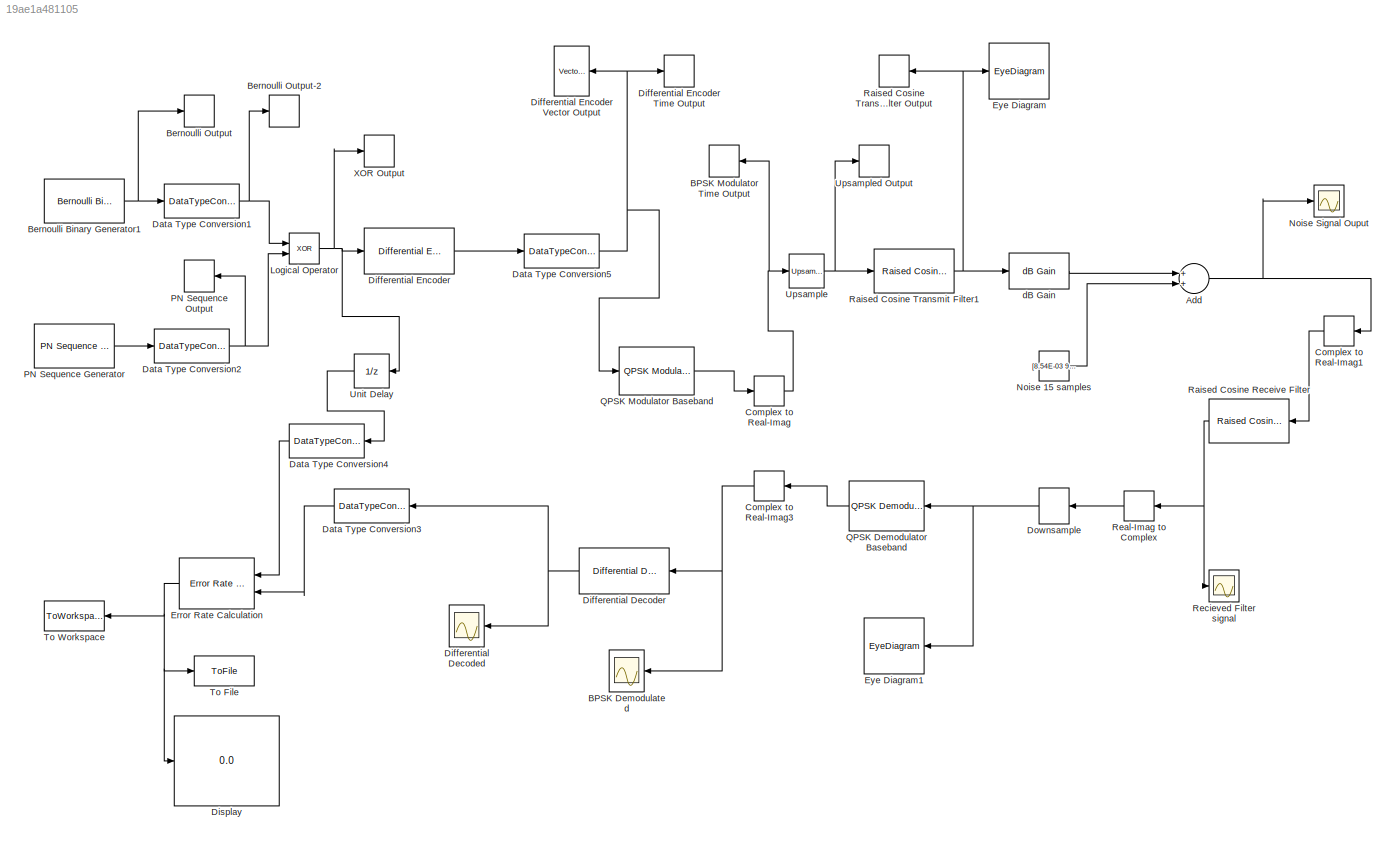
MODEL slx_19ae1a481105
KIND model
CONFIG AbsTol = auto
CONFIG FixedStep = auto
CONFIG MaxStep = auto
CONFIG MinStep = auto
CONFIG RelTol = 1e-3
CONFIG SampleTimeConstraint = Unconstrained
CONFIG Solver = ode45
CONFIG SolverMode = Auto
CONFIG SolverName = ode45
CONFIG StartTime = 0.0
CONFIG StopTime = 10.0
BLOCK [Sum] Add
  InputSameDT = off
  OutDataTypeStr = Inherit: Inherit via internal rule
  Ports = [2, 1]
  SaturateOnIntegerOverflow = off
BLOCK [Scope] BPSK Demodulated
  Floating = off
  NumInputPorts = 1
  Ports = [1]
  SaveName = ScopeData10
BLOCK [TimeScope] BPSK Modulator Time Output
  DefaultConfigurationName = spbscopes.TimeScopeBlockCfg
  NumInputPorts = 1
  Ports = [1]
  ScopeSpecificationString = spbscopes.TimeScopeBlockCfg('CurrentConfiguration', extmgr.ConfigurationSet(extmgr.Configuration('Core','General UI',true),extmgr.Configuration('Core','Source UI',true),extmgr.Configuration('Sources','WiredSimulink',true,'DataLoggingVariableName','ScopeData2'),extmgr.Configuration('Visuals','Time Domain',true,'DisplayPropertyDefaults',struct('MinYLimReal','0.0539959175876','MaxYLimReal','0.0539959...<+1935ch>
  UserDataPersistent = on
BLOCK [Reference] Bernoulli Binary Generator1  REF=commrandsrc2/Bernoulli Binary
Generator
  P = 0.5
  Ports = [0, 1]
  SourceBlock = commrandsrc2/Bernoulli Binary\nGenerator
  SourceType = Bernoulli Binary Generator
  Ts = 1/38400
  frameBased = off
  orient = on
  outDataType = double
  sampPerFrame = 1
  seed = 61
BLOCK [TimeScope] Bernoulli Output
  DefaultConfigurationName = spbscopes.TimeScopeBlockCfg
  NumInputPorts = 1
  Ports = [1]
  ScopeSpecificationString = spbscopes.TimeScopeBlockCfg('CurrentConfiguration', extmgr.ConfigurationSet(extmgr.Configuration('Core','General UI',true),extmgr.Configuration('Core','Source UI',true),extmgr.Configuration('Sources','WiredSimulink',true,'DataLoggingVariableName','ScopeData3'),extmgr.Configuration('Visuals','Time Domain',true,'DisplayPropertyDefaults',struct('MinYLimReal','-0.125','MaxYLimReal','1.125','YLabelReal...<+1812ch>
  UserDataPersistent = on
BLOCK [TimeScope] Bernoulli Output-2
  DefaultConfigurationName = spbscopes.TimeScopeBlockCfg
  NumInputPorts = 1
  Ports = [1]
  ScopeSpecificationString = spbscopes.TimeScopeBlockCfg('CurrentConfiguration', extmgr.ConfigurationSet(extmgr.Configuration('Core','General UI',true),extmgr.Configuration('Core','Source UI',true),extmgr.Configuration('Sources','WiredSimulink',true,'DataLoggingVariableName','ScopeData4'),extmgr.Configuration('Visuals','Time Domain',true,'DisplayPropertyDefaults',struct('MinYLimReal','0.8125','MaxYLimReal','1.125','YLabelReal...<+1818ch>
  UserDataPersistent = on
BLOCK [ComplexToRealImag] Complex to Real-Imag
  Output = Real
  Ports = [1, 1]
BLOCK [ComplexToRealImag] Complex to Real-Imag1
  Output = Real
  Ports = [1, 1]
BLOCK [ComplexToRealImag] Complex to Real-Imag3
  Output = Real
  Ports = [1, 1]
BLOCK [DataTypeConversion] Data Type Conversion1
  OutDataTypeStr = uint8
  RndMeth = Floor
  SaturateOnIntegerOverflow = off
BLOCK [DataTypeConversion] Data Type Conversion2
  OutDataTypeStr = double
  RndMeth = Floor
  SaturateOnIntegerOverflow = off
BLOCK [DataTypeConversion] Data Type Conversion3
  OutDataTypeStr = int8
  RndMeth = Floor
  SaturateOnIntegerOverflow = off
BLOCK [DataTypeConversion] Data Type Conversion4
  OutDataTypeStr = int8
  RndMeth = Floor
  SaturateOnIntegerOverflow = off
BLOCK [DataTypeConversion] Data Type Conversion5
  OutDataTypeStr = int8
  RndMeth = Floor
  SaturateOnIntegerOverflow = off
BLOCK [Scope] Differential Decoded
  Floating = off
  NumInputPorts = 1
  Ports = [1]
  SaveName = ScopeData11
BLOCK [Reference] Differential Decoder  REF=commsrccod2/Differential
Decoder
  InitCond = 0
  Ports = [1, 1]
  SourceBlock = commsrccod2/Differential\nDecoder
  SourceType = Differential Decoder
BLOCK [Reference] Differential Encoder  REF=commsrccod2/Differential
Encoder
  InitCond = 0
  Ports = [1, 1]
  SourceBlock = commsrccod2/Differential\nEncoder
  SourceType = Differential Encoder
BLOCK [TimeScope] Differential Encoder Time Output
  DefaultConfigurationName = spbscopes.TimeScopeBlockCfg
  NumInputPorts = 1
  Ports = [1]
  ScopeSpecificationString = spbscopes.TimeScopeBlockCfg('CurrentConfiguration', extmgr.ConfigurationSet(extmgr.Configuration('Core','General UI',true),extmgr.Configuration('Core','Source UI',true),extmgr.Configuration('Sources','WiredSimulink',true,'DataLoggingVariableName','ScopeData5'),extmgr.Configuration('Visuals','Time Domain',true,'DisplayPropertyDefaults',struct('MinYLimReal','0.830526','MaxYLimReal','0.834614','YLabe...<+1811ch>
  UserDataPersistent = on
BLOCK [Reference] Differential Encoder Vector Output  REF=dspsnks4/Vector
Scope
  AxisGrid = on
  AxisLegend = off
  AxisProperties = off
  AxisZoom = off
  DisplayProperties = off
  Domain = Time
  FigPos = get(0,'defaultfigureposition')
  FrameNumber = on
  HorizSpan = 10
  InheritXIncr = on
  LineProperties = off
  Memory = off
  OpenScopeAtSimStart = on
  OpenScopeImmediately = off
  Ports = [1]
  ScopeProperties = on
  ShowPortLabels = off
  SourceBlock = dspsnks4/Vector\nScope
  SourceType = Vector Scope
  XAxisParamsVer = 6.9
  XIncr = 1
  XLabel = Time
  XLimit = Auto
  XMax = 1
  XMin = 0
  XRange = [0...Fs/2]
  XStart = 0
  XUnits = Hertz
  YLabel = Amplitude
  YMax = 10
  YMin = -10
  YUnits = dB
BLOCK [Display] Display
  Decimation = 1
  Ports = [1]
BLOCK [DownSample] Downsample
  InputProcessing = Elements as channels (sample based)
  N = 15
  RateOptions = Allow multirate processing
BLOCK [Reference] Error Rate Calculation  REF=commsink2/Error Rate
Calculation
  N = 1
  PMode = Port
  Ports = [2, 1]
  RsMode2 = off
  SourceBlock = commsink2/Error Rate\nCalculation
  SourceType = Error Rate Calculation
  WsName = ErrorVec
  cp_mode = Entire frame
  maxBits = 1e6
  numErr = 100
  st_delay = 0
  stop = off
  subframe = []
BLOCK [EyeDiagram] Eye Diagram
  Ports = [1]
  ScopeSpecificationString = comm.scopes.EyeDiagramBlockCfg('CurrentConfiguration', extmgr.ConfigurationSet(extmgr.Configuration('Core','General UI',true),extmgr.Configuration('Core','Source UI',true),extmgr.Configuration('Sources','WiredSimulink',true),extmgr.Configuration('Sources','Simulink',false),extmgr.Configuration('Sources','File',false),extmgr.Configuration('Sources','Workspace',false),extmgr.Configuration('Sources',...<+1094ch>
BLOCK [EyeDiagram] Eye Diagram1
  Ports = [1]
  ScopeSpecificationString = comm.scopes.EyeDiagramBlockCfg('CurrentConfiguration', extmgr.ConfigurationSet(extmgr.Configuration('Core','General UI',true),extmgr.Configuration('Core','Source UI',true),extmgr.Configuration('Sources','WiredSimulink',true),extmgr.Configuration('Sources','Simulink',false),extmgr.Configuration('Sources','File',false),extmgr.Configuration('Sources','Workspace',false),extmgr.Configuration('Sources',...<+1094ch>
BLOCK [Logic] Logical Operator
  AllPortsSameDT = off
  Operator = XOR
  OutDataTypeStr = boolean
  Ports = [2, 1]
BLOCK [Constant] Noise 15 samples
  Value = [8.54E-03\n9.77E-03\n8.54E-03\n8.54E-03\n8.54E-03\n8.54E-03\n9.77E-03\n8.54E-03\n8.54E-03\n8.54E-03\n8.54E-03\n8.54E-03\n8.54E-03\n8.54E-03\n8.54E-03]
BLOCK [Scope] Noise Signal Ouput
  Floating = off
  NumInputPorts = 1
  Ports = [1]
  SaveName = ScopeData1
  YMax = 4.5
  YMin = -4.5
BLOCK [Reference] PN Sequence Generator  REF=commseqgen2/PN Sequence
Generator
  Ports = [0, 1]
  SourceBlock = commseqgen2/PN Sequence\nGenerator
  SourceType = PN Sequence Generator
  Ts = 1/6400
  bitPackDataSigned = off
  bitPackedOutDType = double
  bitPackedOutputs = off
  frameBased = off
  ini_sta = [0 0 0 0 0 1]
  maxOutSize = [10 1]
  maxOutSizeMode = Dialog parameter
  numPackedBits = 8
  outBitMaskSource = Dialog parameter
  outDataType = Smallest unsigned integer
  outVarSiz = off
  poly = [1 0 0 0 0 1 1]
  reset = off
  sampPerFrame = 1
  shift = 0
BLOCK [TimeScope] PN Sequence Output
  DefaultConfigurationName = spbscopes.TimeScopeBlockCfg
  NumInputPorts = 1
  Ports = [1]
  ScopeSpecificationString = spbscopes.TimeScopeBlockCfg('CurrentConfiguration', extmgr.ConfigurationSet(extmgr.Configuration('Core','General UI',true),extmgr.Configuration('Core','Source UI',true),extmgr.Configuration('Sources','WiredSimulink',true,'DataLoggingVariableName','ScopeData6'),extmgr.Configuration('Visuals','Time Domain',true,'DisplayPropertyDefaults',struct('MinYLimReal','0.316386','MaxYLimReal','0.321269','YLabe...<+1862ch>
  UserDataPersistent = on
BLOCK [Reference] QPSK Demodulator Baseband  REF=commdigbbndpm3/QPSK
Demodulator
Baseband
  Dec = Gray
  DecType = Hard decision
  OutType = Integer
  Ph = pi/4
  Ports = [1, 1]
  SourceBlock = commdigbbndpm3/QPSK\nDemodulator\nBaseband
  SourceType = QPSK Demodulator Baseband
  VarSource = Dialog
  Variance = 1
  derotateFactorDTMode = Same word length as input
  derotateFactorWordLen = 16
  outDtype1 = Inherit via internal rule
  outDtype2 = Inherit via internal rule
BLOCK [Reference] QPSK Modulator Baseband  REF=commdigbbndpm3/QPSK
Modulator
Baseband
  Enc = Gray
  InType = Integer
  Ph = pi/4
  Ports = [1, 1]
  SourceBlock = commdigbbndpm3/QPSK\nModulator\nBaseband
  SourceType = QPSK Modulator Baseband
  outDtype = double
  outFracLen = 15
  outFracLenMode = Best precision
  outUDDataType = sfix(16)
  outWordLen = 16
BLOCK [Reference] Raised Cosine Receive Filter  REF=commfilt2/Raised Cosine
Receive Filter
  D = (12)/2
  InputProcessing = Columns as channels (frame based)
  LockScale = off
  N = 6
  Ports = [1, 1]
  R = 0.22
  SourceBlock = commfilt2/Raised Cosine\nReceive Filter
  SourceType = Raised Cosine Receive Filter
  UserDataPersistent = on
  accumFracLength = 30
  accumMode = Same as product output
  accumWordLength = 32
  checkCoeff = off
  checkGain = Normalized
  coeffFracLength = 15
  coeffMode = Same word length as input
  coeffWordLength = 16
  currentFiltSpan = 12
  downFactor = 1
  downOffset = 0
  filtSpan = 12
  filtType = Square root
  filterGain = 1
  framing = Enforce single-rate processing
  launchFVT = on
  outputFracLength = 15
  outputMode = Same as accumulator
  outputWordLength = 16
  overflowMode = off
  prodOutputFracLength = 30
  prodOutputMode = Same as input
  prodOutputWordLength = 32
  rateMode = Downsampling
  roundingMode = Floor
  sampMode = Mute
  saveAsFlag = 0
  variableName = rcRxFilt
BLOCK [TimeScope] Raised Cosine Transmit Filter Output
  DefaultConfigurationName = spbscopes.TimeScopeBlockCfg
  NumInputPorts = 1
  Ports = [1]
  ScopeSpecificationString = spbscopes.TimeScopeBlockCfg('CurrentConfiguration', extmgr.ConfigurationSet(extmgr.Configuration('Core','General UI',true),extmgr.Configuration('Core','Source UI',true),extmgr.Configuration('Sources','WiredSimulink',true,'DataLoggingVariableName','ScopeData7'),extmgr.Configuration('Visuals','Time Domain',true,'DisplayPropertyDefaults',struct('MinYLimReal','-0.941635','MaxYLimReal','0.941635','YLab...<+1848ch>
  UserDataPersistent = on
BLOCK [Reference] Raised Cosine Transmit Filter1  REF=commfilt2/Raised Cosine
Transmit Filter
  D = (12)/2
  InputProcessing = Elements as channels (sample based)
  LockScale = off
  N = 6
  Ports = [1, 1]
  R = 0.22
  SourceBlock = commfilt2/Raised Cosine\nTransmit Filter
  SourceType = Raised Cosine Transmit Filter
  UserDataPersistent = on
  accumFracLength = 30
  accumMode = Inherit via internal rule
  accumWordLength = 32
  checkCoeff = off
  checkGain = Normalized
  coeffFracLength = 15
  coeffMode = Same word length as input
  coeffWordLength = 16
  currentFiltSpan = 12
  filtSpan = 12
  filtType = Square root
  filterGain = 1
  framing = Allow multirate processing
  launchFVT = on
  outputFracLength = 15
  outputMode = Same as accumulator
  outputWordLength = 16
  overflowMode = off
  prodOutputFracLength = 30
  prodOutputMode = Inherit via internal rule
  prodOutputWordLength = 32
  roundingMode = Floor
  sampMode = Mute
  saveAsFlag = 0
  variableName = rcTxFilt1
BLOCK [RealImagToComplex] Real-Imag to Complex
  Input = Real
  Ports = [1, 1]
BLOCK [Scope] Recieved Filter signal
  Floating = off
  NumInputPorts = 1
  Ports = [1]
  SaveName = ScopeData9
  YMax = 2.25
  YMin = -2.25
BLOCK [ToFile] To File
  Filename = BER_Val.mat
  MatrixName = BER
  Ports = [1]
BLOCK [ToWorkspace] To Workspace
  FixptAsFi = on
  MaxDataPoints = inf
  Ports = [1]
  SampleTime = -1
  Save2DSignal = 3-D array (concatenate along third dimension)
  VariableName = BER_values
BLOCK [UnitDelay] Unit Delay
  InputProcessing = Elements as channels (sample based)
  SampleTime = 1/100
BLOCK [Reference] Upsample  REF=dspsigops/Upsample
  InputProcessing = Columns as channels (frame based)
  N = 15
  Ports = [1, 1]
  RateOptions = Enforce single-rate processing
  SourceBlock = dspsigops/Upsample
  SourceType = Upsample
  UserDataPersistent = on
  ic = 0
  mode = Unused parameter value
  phase = 0
BLOCK [TimeScope] Upsampled Output
  DefaultConfigurationName = spbscopes.TimeScopeBlockCfg
  NumInputPorts = 1
  Ports = [1]
  ScopeSpecificationString = spbscopes.TimeScopeBlockCfg('CurrentConfiguration', extmgr.ConfigurationSet(extmgr.Configuration('Core','General UI',true),extmgr.Configuration('Core','Source UI',true),extmgr.Configuration('Sources','WiredSimulink',true,'DataLoggingVariableName','ScopeData8'),extmgr.Configuration('Visuals','Time Domain',true,'DisplayPropertyDefaults',struct('MinYLimReal','0.258882','MaxYLimReal','0.259493','YLabe...<+1840ch>
  UserDataPersistent = on
BLOCK [TimeScope] XOR Output
  DefaultConfigurationName = spbscopes.TimeScopeBlockCfg
  NumInputPorts = 1
  Ports = [1]
  ScopeSpecificationString = spbscopes.TimeScopeBlockCfg('CurrentConfiguration', extmgr.ConfigurationSet(extmgr.Configuration('Core','General UI',true),extmgr.Configuration('Core','Source UI',true),extmgr.Configuration('Sources','WiredSimulink',true),extmgr.Configuration('Visuals','Time Domain',true,'DisplayPropertyDefaults',struct('MinYLimReal','-0.125','MaxYLimReal','1.125','YLabelReal','Amplitude','MinYLimMag','0','MaxYLim...<+1985ch>
  UserDataPersistent = on
BLOCK [Reference] dB Gain  REF=dspmathops/dB Gain
  Ports = [1, 1]
  SourceBlock = dspmathops/dB Gain
  SourceType = dB Gain
  dB = 5
  intype = Amplitude
NET Add:1 -> Complex to Real-Imag1:1, Noise Signal Ouput:1
NET Bernoulli Binary Generator1:1 -> Bernoulli Output:1, Data Type Conversion1:1
LINE Complex to Real-Imag1:1 -> Raised Cosine Receive Filter:1
NET Complex to Real-Imag3:1 -> BPSK Demodulated:1, Differential Decoder:1
NET Complex to Real-Imag:1 -> BPSK Modulator Time Output:1, Upsample:1
NET Data Type Conversion1:1 -> Bernoulli Output-2:1, Logical Operator:1
NET Data Type Conversion2:1 -> Logical Operator:2, PN Sequence Output:1
LINE Data Type Conversion3:1 -> Error Rate Calculation:2
LINE Data Type Conversion4:1 -> Error Rate Calculation:1
NET Data Type Conversion5:1 -> Differential Encoder Time Output:1, Differential Encoder Vector Output:1, QPSK Modulator Baseband:1
NET Differential Decoder:1 -> Data Type Conversion3:1, Differential Decoded:1
LINE Differential Encoder:1 -> Data Type Conversion5:1
NET Downsample:1 -> Eye Diagram1:1, QPSK Demodulator Baseband:1
NET Error Rate Calculation:1 -> Display:1, To File:1, To Workspace:1
NET Logical Operator:1 -> Differential Encoder:1, Unit Delay:1, XOR Output:1
LINE Noise 15 samples:1 -> Add:2
LINE PN Sequence Generator:1 -> Data Type Conversion2:1
LINE QPSK Demodulator Baseband:1 -> Complex to Real-Imag3:1
LINE QPSK Modulator Baseband:1 -> Complex to Real-Imag:1
NET Raised Cosine Receive Filter:1 -> Real-Imag to Complex:1, Recieved Filter signal:1
NET Raised Cosine Transmit Filter1:1 -> Eye Diagram:1, Raised Cosine Transmit Filter Output:1, dB Gain:1
LINE Real-Imag to Complex:1 -> Downsample:1
LINE Unit Delay:1 -> Data Type Conversion4:1
NET Upsample:1 -> Raised Cosine Transmit Filter1:1, Upsampled Output:1
LINE dB Gain:1 -> Add:1
note: NET lines group one-source signal fan-out (src -> all destinations, sorted); 1:1 wires keep LINE
